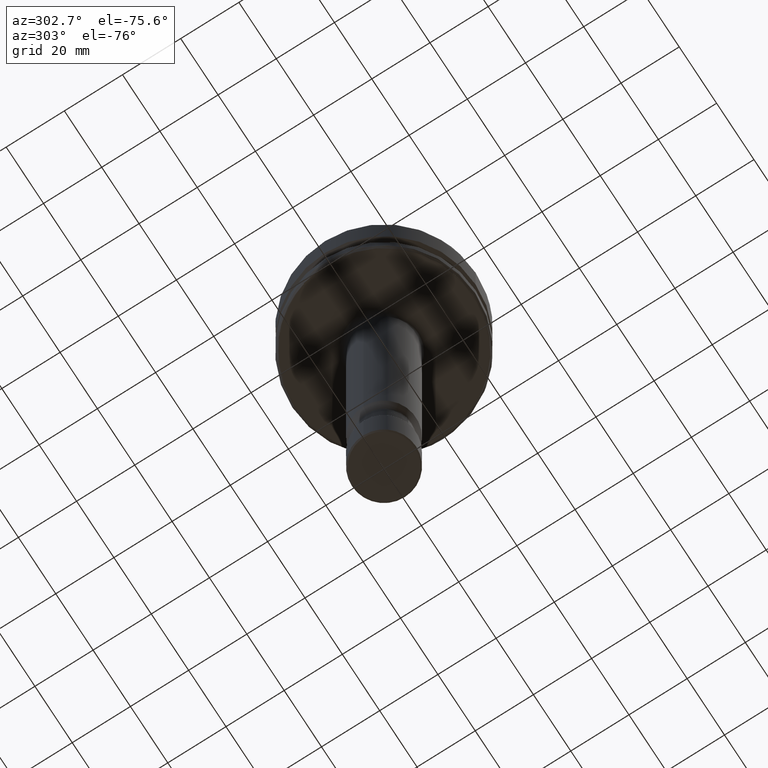
[diagram: clean part render]
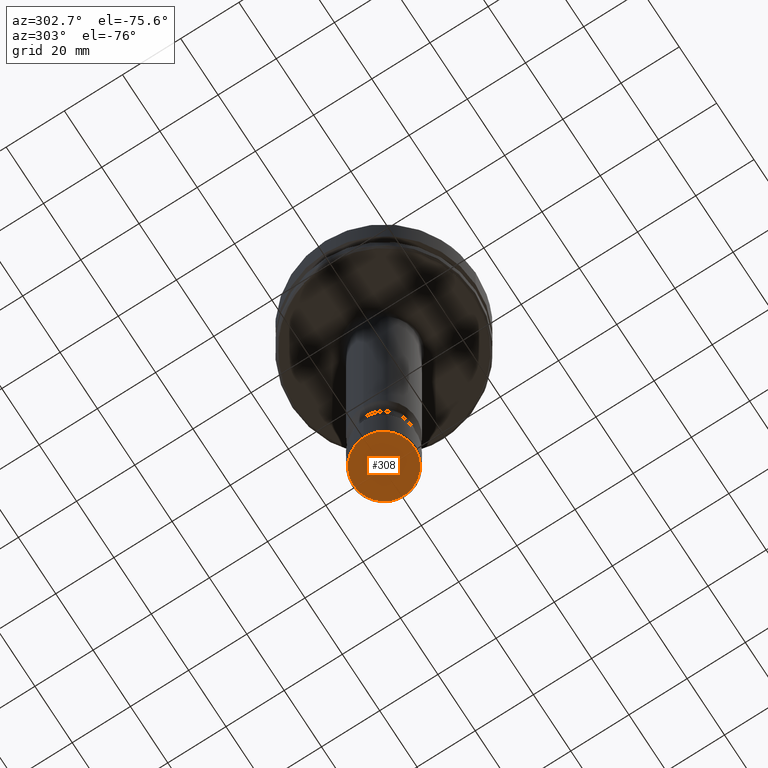
[diagram: same view with one face highlighted and labeled with its STEP entity id]
A machine part, auxiliary view. The second image highlights one B-rep face of the part: STEP entity #308.
In plain terms, the highlighted planar face has unit normal (0, 0, 1).
Its self-contained STEP definition (entity closure, byte-faithful):
#70 = CIRCLE ( 'NONE', #1096, 10.49999999999992700 ) ;
#308 = ADVANCED_FACE ( 'NONE', ( #1973 ), #922, .F. ) ;
#626 = AXIS2_PLACEMENT_3D ( 'NONE', #658, #2104, #861 ) ;
#658 = CARTESIAN_POINT ( 'NONE',  ( 0.0000000000000000000, 5.559680866965280400E-029, -160.0000000000000600 ) ) ;
#861 = DIRECTION ( 'NONE',  ( 0.0000000000000000000, -1.000000000000000000, 0.0000000000000000000 ) ) ;
#868 = CARTESIAN_POINT ( 'NONE',  ( 1.316495309083400300E-015, 10.49999999999992700, -160.0000000000000600 ) ) ;
#922 = PLANE ( 'NONE',  #2192 ) ;
#1096 = AXIS2_PLACEMENT_3D ( 'NONE', #2422, #1215, #2625 ) ;
#1215 = DIRECTION ( 'NONE',  ( -0.0000000000000000000, 1.321694076934710200E-015, -1.000000000000000000 ) ) ;
#1467 = CARTESIAN_POINT ( 'NONE',  ( 0.0000000000000000000, -10.49999999999992700, -160.0000000000000600 ) ) ;
#1556 = EDGE_LOOP ( 'NONE', ( #2624, #2207 ) ) ;
#1710 = VERTEX_POINT ( 'NONE', #1467 ) ;
#1973 = FACE_OUTER_BOUND ( 'NONE', #1556, .T. ) ;
#2104 = DIRECTION ( 'NONE',  ( -0.0000000000000000000, 1.321694076934710200E-015, -1.000000000000000000 ) ) ;
#2192 = AXIS2_PLACEMENT_3D ( 'NONE', #2348, #2246, #2235 ) ;
#2206 = CIRCLE ( 'NONE', #626, 10.49999999999992700 ) ;
#2207 = ORIENTED_EDGE ( 'NONE', *, *, #2503, .T. ) ;
#2235 = DIRECTION ( 'NONE',  ( 1.000000000000000000, 0.0000000000000000000, 0.0000000000000000000 ) ) ;
#2246 = DIRECTION ( 'NONE',  ( 0.0000000000000000000, 0.0000000000000000000, 1.000000000000000000 ) ) ;
#2250 = VERTEX_POINT ( 'NONE', #868 ) ;
#2348 = CARTESIAN_POINT ( 'NONE',  ( -10.62599999999999900, -10.62599999999999900, -160.0000000000000000 ) ) ;
#2422 = CARTESIAN_POINT ( 'NONE',  ( 0.0000000000000000000, 5.559680866965280400E-029, -160.0000000000000600 ) ) ;
#2503 = EDGE_CURVE ( 'NONE', #2250, #1710, #70, .T. ) ;
#2607 = EDGE_CURVE ( 'NONE', #1710, #2250, #2206, .T. ) ;
#2624 = ORIENTED_EDGE ( 'NONE', *, *, #2607, .T. ) ;
#2625 = DIRECTION ( 'NONE',  ( 0.0000000000000000000, -1.000000000000000000, 0.0000000000000000000 ) ) ;